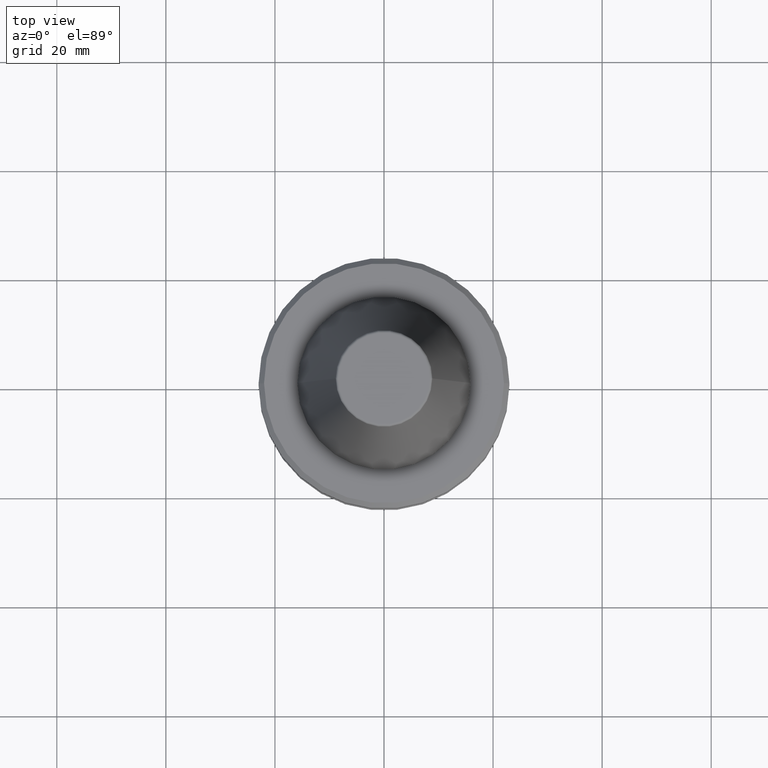
[diagram: clean part render]
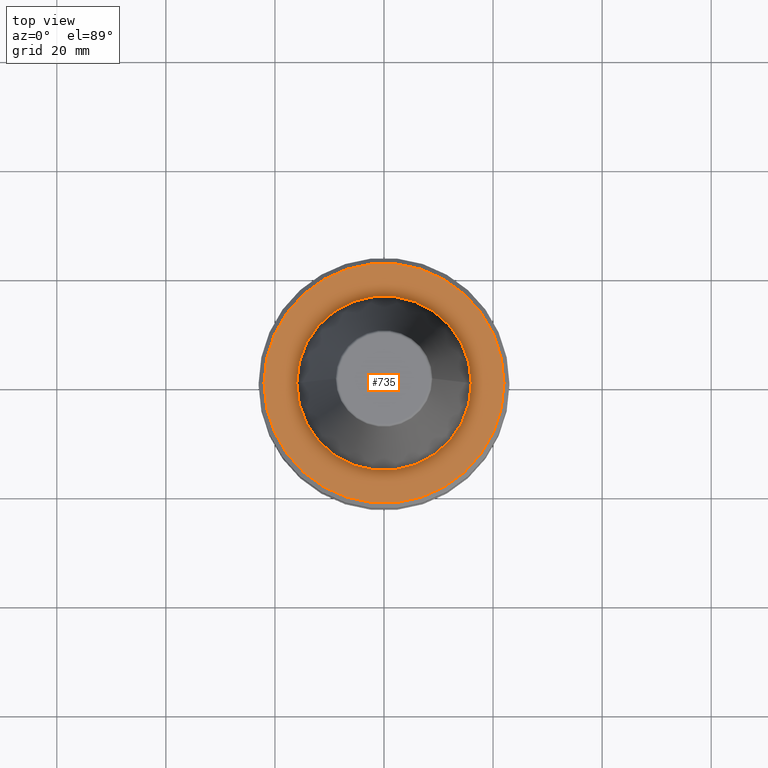
[diagram: same view with one face highlighted and labeled with its STEP entity id]
A machine part, top view. The second image highlights one B-rep face of the part: STEP entity #735.
In plain terms, the highlighted planar face has unit normal (0, 0, -1).
Its self-contained STEP definition (entity closure, byte-faithful):
#46 = AXIS2_PLACEMENT_3D ( 'NONE', #633, #815, #265 ) ;
#50 = ORIENTED_EDGE ( 'NONE', *, *, #294, .T. ) ;
#79 = ORIENTED_EDGE ( 'NONE', *, *, #991, .T. ) ;
#190 = DIRECTION ( 'NONE',  ( -0.0000000000000000000, -0.0000000000000000000, 1.000000000000000000 ) ) ;
#216 = CARTESIAN_POINT ( 'NONE',  ( -22.00000000000024200, 0.0000000000000000000, -2.000000000000001800 ) ) ;
#247 = CIRCLE ( 'NONE', #884, 16.00000000000045800 ) ;
#265 = DIRECTION ( 'NONE',  ( -1.000000000000000000, 0.0000000000000000000, -0.0000000000000000000 ) ) ;
#294 = EDGE_CURVE ( 'NONE', #1166, #1043, #923, .T. ) ;
#324 = DIRECTION ( 'NONE',  ( -0.0000000000000000000, -0.0000000000000000000, 1.000000000000000000 ) ) ;
#401 = ORIENTED_EDGE ( 'NONE', *, *, #814, .F. ) ;
#405 = AXIS2_PLACEMENT_3D ( 'NONE', #732, #190, #827 ) ;
#409 = CARTESIAN_POINT ( 'NONE',  ( 0.0000000000000000000, 0.0000000000000000000, -2.000000000000001800 ) ) ;
#440 = FACE_BOUND ( 'NONE', #521, .T. ) ;
#451 = PLANE ( 'NONE',  #46 ) ;
#513 = VERTEX_POINT ( 'NONE', #994 ) ;
#514 = DIRECTION ( 'NONE',  ( 1.000000000000000000, 0.0000000000000000000, 0.0000000000000000000 ) ) ;
#520 = CARTESIAN_POINT ( 'NONE',  ( 0.0000000000000000000, 0.0000000000000000000, -2.000000000000001800 ) ) ;
#521 = EDGE_LOOP ( 'NONE', ( #802, #401 ) ) ;
#602 = DIRECTION ( 'NONE',  ( 1.000000000000000000, 0.0000000000000000000, 0.0000000000000000000 ) ) ;
#633 = CARTESIAN_POINT ( 'NONE',  ( 0.0000000000000000000, 22.00000000000024200, -2.000000000000001800 ) ) ;
#635 = AXIS2_PLACEMENT_3D ( 'NONE', #520, #1147, #602 ) ;
#732 = CARTESIAN_POINT ( 'NONE',  ( 0.0000000000000000000, 0.0000000000000000000, -2.000000000000001800 ) ) ;
#735 = ADVANCED_FACE ( 'NONE', ( #440, #1090 ), #451, .F. ) ;
#736 = CIRCLE ( 'NONE', #405, 22.00000000000024200 ) ;
#802 = ORIENTED_EDGE ( 'NONE', *, *, #806, .F. ) ;
#806 = EDGE_CURVE ( 'NONE', #975, #513, #247, .T. ) ;
#814 = EDGE_CURVE ( 'NONE', #513, #975, #1010, .T. ) ;
#815 = DIRECTION ( 'NONE',  ( 0.0000000000000000000, 0.0000000000000000000, -1.000000000000000000 ) ) ;
#827 = DIRECTION ( 'NONE',  ( 1.000000000000000000, 0.0000000000000000000, 0.0000000000000000000 ) ) ;
#870 = CARTESIAN_POINT ( 'NONE',  ( 0.0000000000000000000, 0.0000000000000000000, -2.000000000000001800 ) ) ;
#884 = AXIS2_PLACEMENT_3D ( 'NONE', #870, #324, #967 ) ;
#923 = CIRCLE ( 'NONE', #1049, 22.00000000000024200 ) ;
#967 = DIRECTION ( 'NONE',  ( 1.000000000000000000, 0.0000000000000000000, 0.0000000000000000000 ) ) ;
#975 = VERTEX_POINT ( 'NONE', #1005 ) ;
#991 = EDGE_CURVE ( 'NONE', #1043, #1166, #736, .T. ) ;
#994 = CARTESIAN_POINT ( 'NONE',  ( -16.00000000000045800, 1.959434878635820700E-015, -1.999999999999946300 ) ) ;
#1005 = CARTESIAN_POINT ( 'NONE',  ( 16.00000000000045800, 0.0000000000000000000, -1.999999999999946300 ) ) ;
#1009 = CARTESIAN_POINT ( 'NONE',  ( 22.00000000000024200, 2.755455298081567700E-015, -2.000000000000001800 ) ) ;
#1010 = CIRCLE ( 'NONE', #635, 16.00000000000045800 ) ;
#1042 = DIRECTION ( 'NONE',  ( -0.0000000000000000000, -0.0000000000000000000, 1.000000000000000000 ) ) ;
#1043 = VERTEX_POINT ( 'NONE', #1009 ) ;
#1049 = AXIS2_PLACEMENT_3D ( 'NONE', #409, #1042, #514 ) ;
#1090 = FACE_OUTER_BOUND ( 'NONE', #1106, .T. ) ;
#1106 = EDGE_LOOP ( 'NONE', ( #50, #79 ) ) ;
#1147 = DIRECTION ( 'NONE',  ( -0.0000000000000000000, -0.0000000000000000000, 1.000000000000000000 ) ) ;
#1166 = VERTEX_POINT ( 'NONE', #216 ) ;